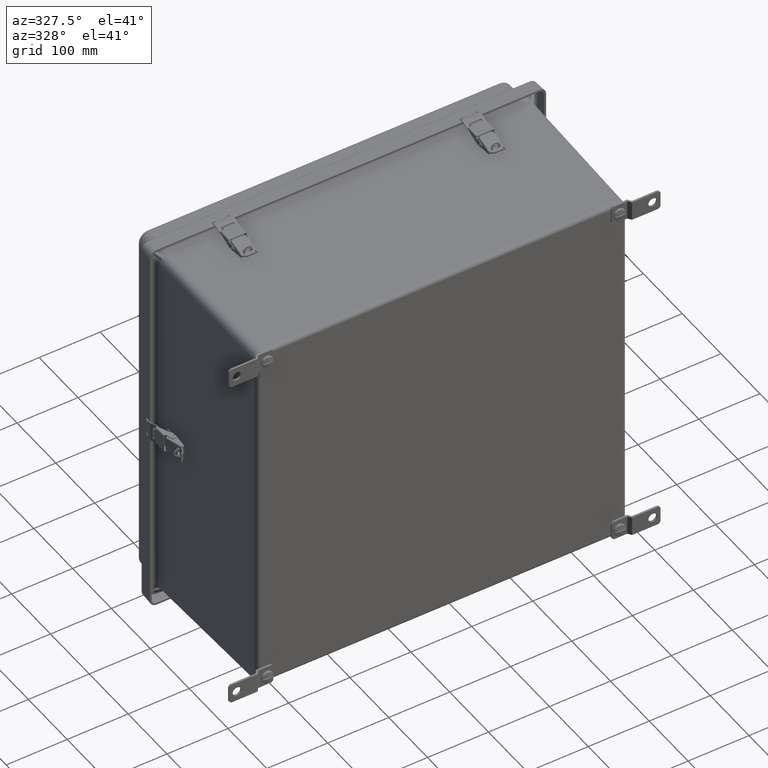
[diagram: clean part render]
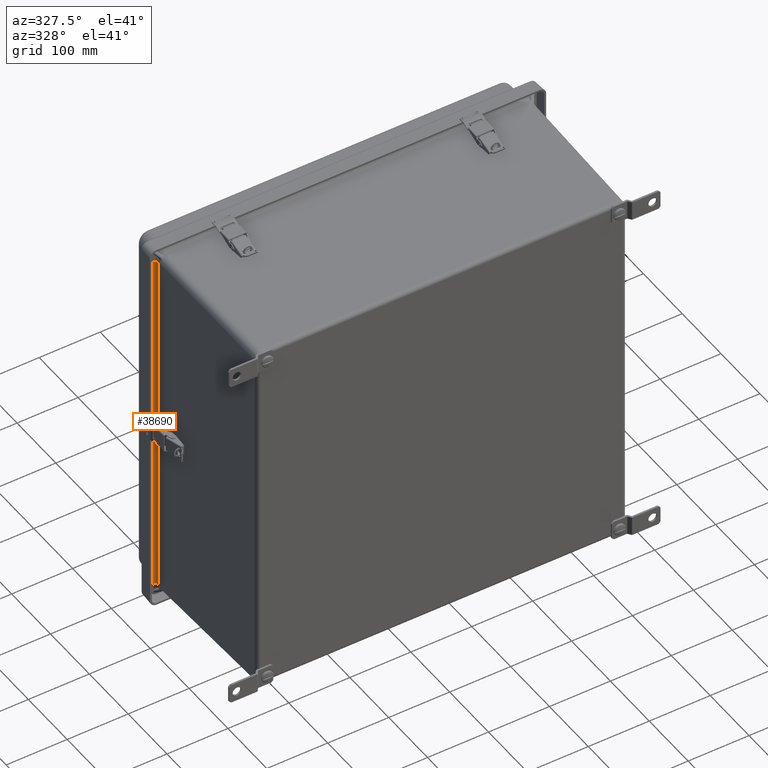
[diagram: same view with one face highlighted and labeled with its STEP entity id]
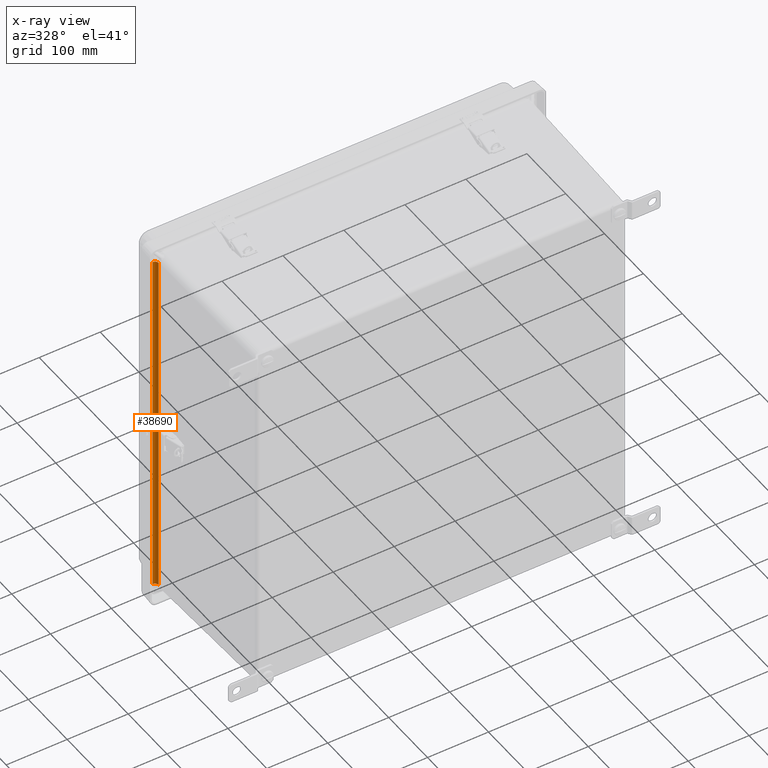
[diagram: x-ray of the same camera — body ghosted, the highlighted face saturated]
A machine part, auxiliary view. The second image highlights one B-rep face of the part: STEP entity #38690.
The next image is the same camera in x-ray: the body ghosted, the highlighted face saturated — about 0% of this face is hidden behind the body in this view.
In plain terms, the highlighted cylindrical surface (edge-blend (fillet) strip) has radius 6.35 mm, axis along (0, 0, 1).
Its self-contained STEP definition (entity closure, byte-faithful):
#1067 = VERTEX_POINT ( 'NONE', #34562 ) ;
#1745 = DIRECTION ( 'NONE',  ( -1.000000000000000000, 0.0000000000000000000, 0.0000000000000000000 ) ) ;
#4568 = CIRCLE ( 'NONE', #8422, 0.2500000000000008900 ) ;
#4583 = CARTESIAN_POINT ( 'NONE',  ( -12.37131054954687000, -0.2500000000000000000, -11.62142477817957500 ) ) ;
#8422 = AXIS2_PLACEMENT_3D ( 'NONE', #11893, #46304, #16853 ) ;
#8862 = FACE_OUTER_BOUND ( 'NONE', #49643, .T. ) ;
#9232 = VERTEX_POINT ( 'NONE', #16410 ) ;
#10517 = EDGE_CURVE ( 'NONE', #1067, #9232, #48526, .T. ) ;
#11893 = CARTESIAN_POINT ( 'NONE',  ( -12.37131054954686800, -0.5000000000000000000, 11.62142477817956600 ) ) ;
#15204 = CARTESIAN_POINT ( 'NONE',  ( -12.37131054954686800, -0.2500000000000000000, 11.62142477817956300 ) ) ;
#16410 = CARTESIAN_POINT ( 'NONE',  ( -12.12134862575777200, -0.4956368983906792000, -11.62142477817957500 ) ) ;
#16853 = DIRECTION ( 'NONE',  ( -1.000000000000000000, 0.0000000000000000000, 0.0000000000000000000 ) ) ;
#20423 = CYLINDRICAL_SURFACE ( 'NONE', #45300, 0.2500000000000008900 ) ;
#20677 = EDGE_CURVE ( 'NONE', #61047, #9232, #24930, .T. ) ;
#20829 = ORIENTED_EDGE ( 'NONE', *, *, #20677, .T. ) ;
#22907 = DIRECTION ( 'NONE',  ( 0.0000000000000000000, 0.0000000000000000000, 1.000000000000000000 ) ) ;
#24930 = CIRCLE ( 'NONE', #40023, 0.2500000000000008900 ) ;
#27240 = VERTEX_POINT ( 'NONE', #15204 ) ;
#27548 = EDGE_CURVE ( 'NONE', #61047, #27240, #50852, .T. ) ;
#27888 = CARTESIAN_POINT ( 'NONE',  ( -12.37131054954686800, -0.5000000000000000000, -12.09399999999998500 ) ) ;
#30225 = CARTESIAN_POINT ( 'NONE',  ( -12.12134862575776900, -0.4956368983906792000, -12.12999999999999900 ) ) ;
#31181 = DIRECTION ( 'NONE',  ( 0.0000000000000000000, 0.0000000000000000000, -1.000000000000000000 ) ) ;
#33923 = VECTOR ( 'NONE', #59563, 39.37007874015748100 ) ;
#34562 = CARTESIAN_POINT ( 'NONE',  ( -12.12134862575776900, -0.4956368983906792000, 11.62142477817956600 ) ) ;
#35675 = EDGE_CURVE ( 'NONE', #27240, #1067, #4568, .T. ) ;
#37771 = VECTOR ( 'NONE', #59347, 39.37007874015748100 ) ;
#38690 = ADVANCED_FACE ( 'NONE', ( #8862 ), #20423, .F. ) ;
#40023 = AXIS2_PLACEMENT_3D ( 'NONE', #60533, #31181, #1745 ) ;
#43953 = ORIENTED_EDGE ( 'NONE', *, *, #35675, .F. ) ;
#45300 = AXIS2_PLACEMENT_3D ( 'NONE', #27888, #22907, #61981 ) ;
#45365 = ORIENTED_EDGE ( 'NONE', *, *, #10517, .F. ) ;
#46304 = DIRECTION ( 'NONE',  ( 0.0000000000000000000, 0.0000000000000000000, -1.000000000000000000 ) ) ;
#48526 = LINE ( 'NONE', #30225, #33923 ) ;
#49643 = EDGE_LOOP ( 'NONE', ( #43953, #59495, #20829, #45365 ) ) ;
#50852 = LINE ( 'NONE', #54438, #37771 ) ;
#54438 = CARTESIAN_POINT ( 'NONE',  ( -12.37131054954686800, -0.2500000000000000000, -12.09399999999998500 ) ) ;
#59347 = DIRECTION ( 'NONE',  ( 0.0000000000000000000, -0.0000000000000000000, 1.000000000000000000 ) ) ;
#59495 = ORIENTED_EDGE ( 'NONE', *, *, #27548, .F. ) ;
#59563 = DIRECTION ( 'NONE',  ( -0.0000000000000000000, -0.0000000000000000000, -1.000000000000000000 ) ) ;
#60533 = CARTESIAN_POINT ( 'NONE',  ( -12.37131054954687000, -0.5000000000000000000, -11.62142477817957500 ) ) ;
#61047 = VERTEX_POINT ( 'NONE', #4583 ) ;
#61981 = DIRECTION ( 'NONE',  ( 1.000000000000000000, 0.0000000000000000000, 0.0000000000000000000 ) ) ;